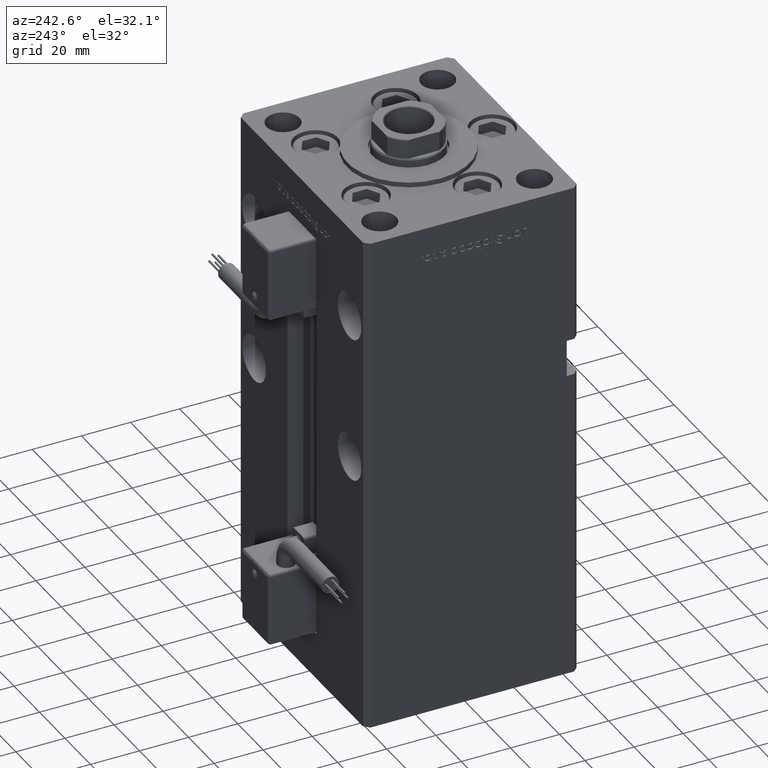
[diagram: clean part render]
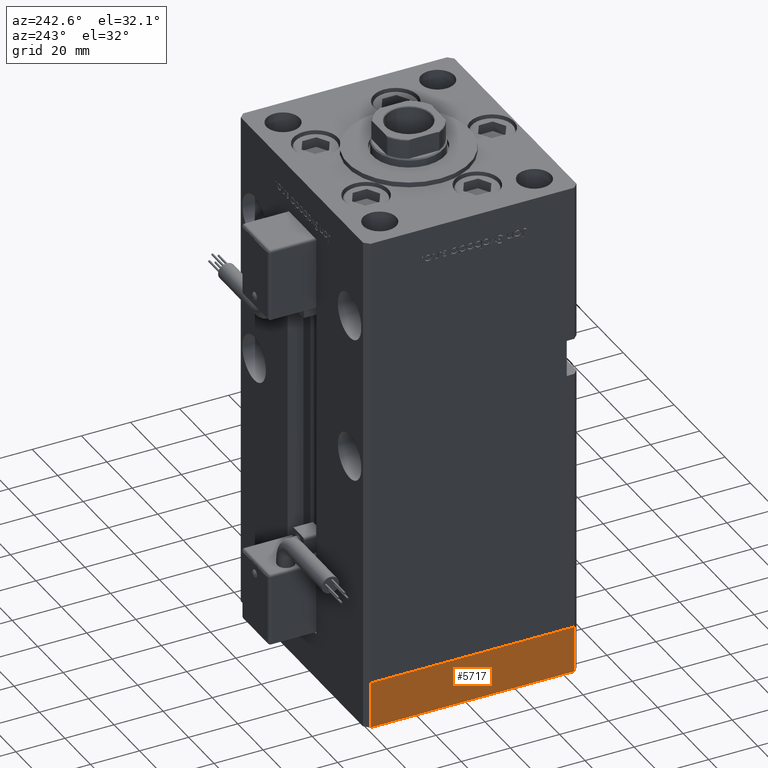
[diagram: same view with one face highlighted and labeled with its STEP entity id]
A machine part, auxiliary view. The second image highlights one B-rep face of the part: STEP entity #5717.
In plain terms, the highlighted planar face has unit normal (-1, -0, 0).
Its self-contained STEP definition (entity closure, byte-faithful):
#973 = VECTOR ( 'NONE', #12555, 1000.000000000000000 ) ;
#5135 = VERTEX_POINT ( 'NONE', #6136 ) ;
#5717 = ADVANCED_FACE ( 'NONE', ( #19127 ), #10274, .T. ) ;
#6136 = CARTESIAN_POINT ( 'NONE',  ( 49.99999999999992184, 41.49999999999998579, -19.00000000000000000 ) ) ;
#6931 = CARTESIAN_POINT ( 'NONE',  ( 50.00000000000000000, -41.49999999999999289, -19.00000000000000000 ) ) ;
#7116 = VECTOR ( 'NONE', #27504, 1000.000000000000000 ) ;
#7451 = LINE ( 'NONE', #51639, #973 ) ;
#8608 = CARTESIAN_POINT ( 'NONE',  ( 49.99999999999992184, 41.49999999999998579, 0.000000000000000000 ) ) ;
#10274 = PLANE ( 'NONE',  #26381 ) ;
#12555 = DIRECTION ( 'NONE',  ( 0.000000000000000000, 0.000000000000000000, 1.000000000000000000 ) ) ;
#14575 = LINE ( 'NONE', #15696, #28898 ) ;
#15696 = CARTESIAN_POINT ( 'NONE',  ( 50.00000000000000000, -41.49999999999999289, -19.00000000000000000 ) ) ;
#16271 = VERTEX_POINT ( 'NONE', #8608 ) ;
#17398 = DIRECTION ( 'NONE',  ( -1.003213576468515193E-15, 1.000000000000000000, 0.000000000000000000 ) ) ;
#19127 = FACE_OUTER_BOUND ( 'NONE', #19596, .T. ) ;
#19596 = EDGE_LOOP ( 'NONE', ( #37291, #33233, #53777, #56431 ) ) ;
#22860 = CARTESIAN_POINT ( 'NONE',  ( 50.00000000000000000, -41.49999999999999289, -19.00000000000000000 ) ) ;
#23180 = EDGE_CURVE ( 'NONE', #29469, #5135, #49178, .T. ) ;
#26381 = AXIS2_PLACEMENT_3D ( 'NONE', #22860, #31402, #44516 ) ;
#27504 = DIRECTION ( 'NONE',  ( -1.003213576468515193E-15, 1.000000000000000000, 0.000000000000000000 ) ) ;
#27703 = DIRECTION ( 'NONE',  ( 0.000000000000000000, 0.000000000000000000, 1.000000000000000000 ) ) ;
#28898 = VECTOR ( 'NONE', #27703, 1000.000000000000000 ) ;
#29469 = VERTEX_POINT ( 'NONE', #6931 ) ;
#31402 = DIRECTION ( 'NONE',  ( 1.000000000000000000, 1.003213576468515193E-15, -0.000000000000000000 ) ) ;
#32064 = CARTESIAN_POINT ( 'NONE',  ( 50.00000000000000000, -41.49999999999999289, -19.00000000000000000 ) ) ;
#33233 = ORIENTED_EDGE ( 'NONE', *, *, #43666, .F. ) ;
#35905 = CARTESIAN_POINT ( 'NONE',  ( 50.00000000000000000, -41.49999999999999289, 0.000000000000000000 ) ) ;
#37291 = ORIENTED_EDGE ( 'NONE', *, *, #44836, .F. ) ;
#38968 = VECTOR ( 'NONE', #17398, 1000.000000000000000 ) ;
#43666 = EDGE_CURVE ( 'NONE', #29469, #51895, #14575, .T. ) ;
#44516 = DIRECTION ( 'NONE',  ( -1.003213576468515193E-15, 1.000000000000000000, 0.000000000000000000 ) ) ;
#44836 = EDGE_CURVE ( 'NONE', #51895, #16271, #52473, .T. ) ;
#49178 = LINE ( 'NONE', #32064, #7116 ) ;
#49921 = CARTESIAN_POINT ( 'NONE',  ( 50.00000000000000000, -41.49999999999999289, 0.000000000000000000 ) ) ;
#51639 = CARTESIAN_POINT ( 'NONE',  ( 49.99999999999992184, 41.49999999999998579, -19.00000000000000000 ) ) ;
#51895 = VERTEX_POINT ( 'NONE', #49921 ) ;
#52473 = LINE ( 'NONE', #35905, #38968 ) ;
#53777 = ORIENTED_EDGE ( 'NONE', *, *, #23180, .T. ) ;
#55626 = EDGE_CURVE ( 'NONE', #5135, #16271, #7451, .T. ) ;
#56431 = ORIENTED_EDGE ( 'NONE', *, *, #55626, .T. ) ;